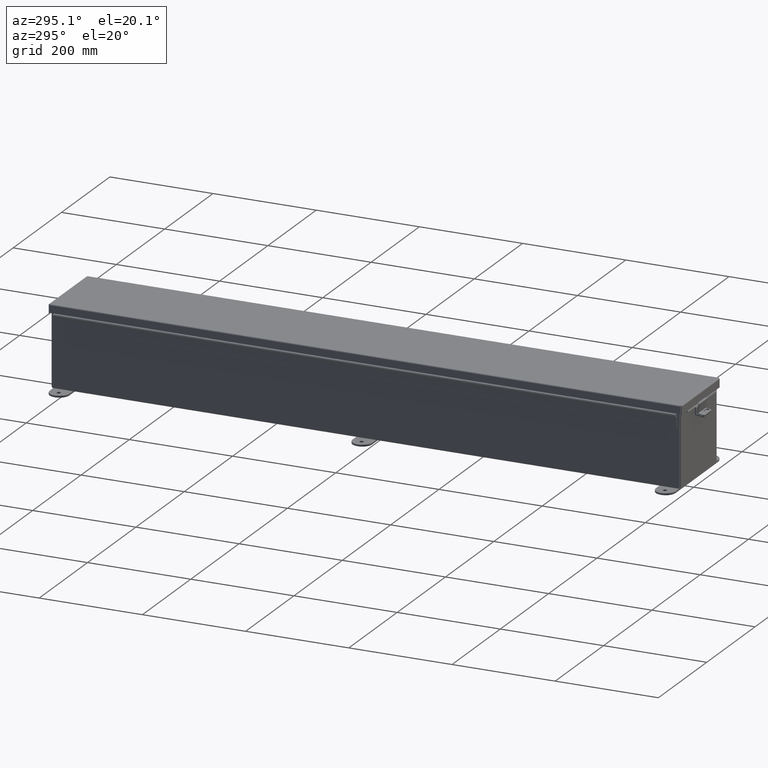
[diagram: clean part render]
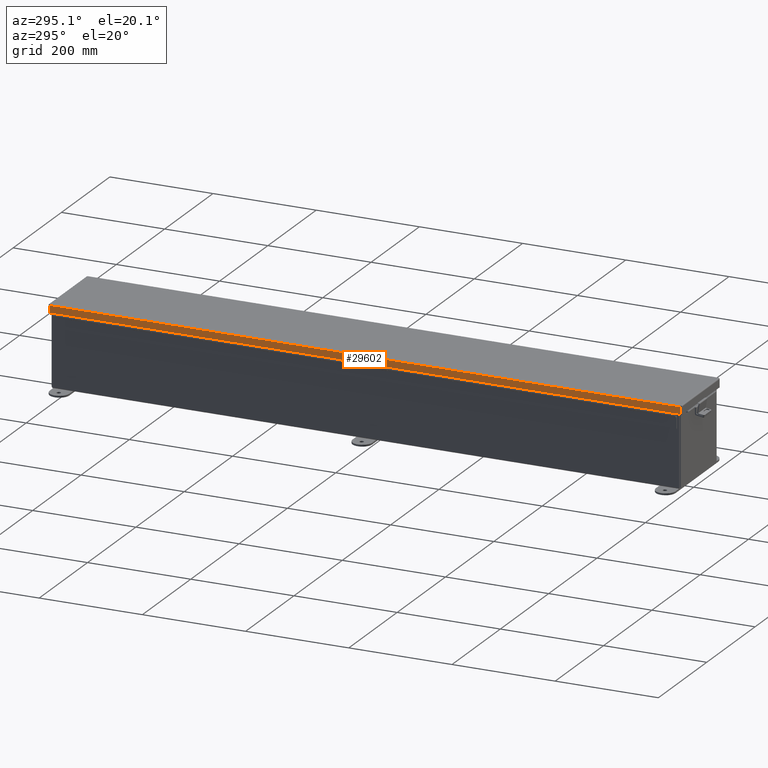
[diagram: same view with one face highlighted and labeled with its STEP entity id]
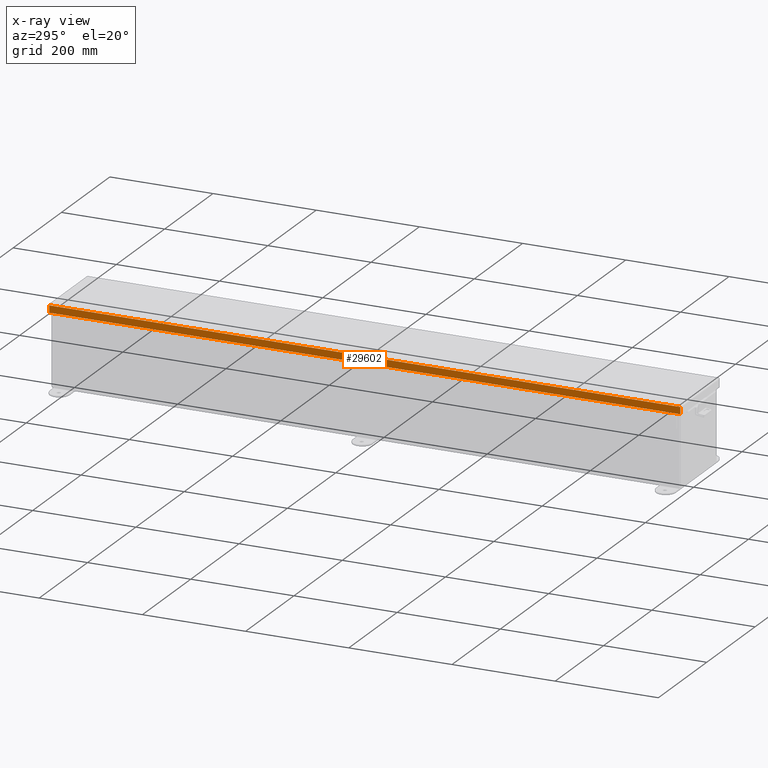
[diagram: x-ray of the same camera — body ghosted, the highlighted face saturated]
A machine part, auxiliary view. The second image highlights one B-rep face of the part: STEP entity #29602.
The next image is the same camera in x-ray: the body ghosted, the highlighted face saturated — about 0% of this face is hidden behind the body in this view.
In plain terms, the highlighted planar face has unit normal (1, -0, 0).
Its self-contained STEP definition (entity closure, byte-faithful):
#313 = LINE ( 'NONE', #27897, #23017 ) ;
#1070 = CARTESIAN_POINT ( 'NONE',  ( 3.156250000000011500, 24.07447893218813600, 0.01300000000000120000 ) ) ;
#3472 = VERTEX_POINT ( 'NONE', #13776 ) ;
#4089 = DIRECTION ( 'NONE',  ( -4.418124373691463200E-030, -1.000000000000000000, -2.261814638997488700E-017 ) ) ;
#6180 = VECTOR ( 'NONE', #6481, 39.37007874015748100 ) ;
#6357 = CARTESIAN_POINT ( 'NONE',  ( 3.156250000000011500, 24.07447893218813600, -1.202013117212275700E-014 ) ) ;
#6481 = DIRECTION ( 'NONE',  ( 3.971430846686186800E-015, -1.479114197289391000E-030, 1.000000000000000000 ) ) ;
#7937 = LINE ( 'NONE', #6357, #6180 ) ;
#8965 = VECTOR ( 'NONE', #4089, 39.37007874015748100 ) ;
#9055 = DIRECTION ( 'NONE',  ( -1.000000000000000000, -3.804630158025623000E-030, 3.971430846686186800E-015 ) ) ;
#12852 = CARTESIAN_POINT ( 'NONE',  ( 3.156250000000011500, -24.07447893218813600, 0.01300000000000010700 ) ) ;
#12939 = VECTOR ( 'NONE', #15217, 39.37007874015748100 ) ;
#13254 = FACE_OUTER_BOUND ( 'NONE', #15766, .T. ) ;
#13403 = VERTEX_POINT ( 'NONE', #1070 ) ;
#13776 = CARTESIAN_POINT ( 'NONE',  ( 3.156250000000013800, -24.07447893218813200, 0.5502999999999999000 ) ) ;
#14594 = CARTESIAN_POINT ( 'NONE',  ( 3.156250000000013800, 24.07447893218813600, 0.5503000000000096700 ) ) ;
#15217 = DIRECTION ( 'NONE',  ( -3.803320153772282700E-030, -1.000000000000000000, 8.874685183736382800E-031 ) ) ;
#15766 = EDGE_LOOP ( 'NONE', ( #35102, #25562, #24378, #21727 ) ) ;
#16427 = DIRECTION ( 'NONE',  ( 3.971430846686186800E-015, -1.479114197289391000E-030, 1.000000000000000000 ) ) ;
#17937 = EDGE_CURVE ( 'NONE', #13403, #26496, #30783, .T. ) ;
#20024 = CARTESIAN_POINT ( 'NONE',  ( 3.156250000000011500, -1.600692183787654200E-018, -1.202013117212275700E-014 ) ) ;
#21727 = ORIENTED_EDGE ( 'NONE', *, *, #33981, .F. ) ;
#21759 = EDGE_CURVE ( 'NONE', #25053, #3472, #35725, .T. ) ;
#23017 = VECTOR ( 'NONE', #16427, 39.37007874015748100 ) ;
#23629 = EDGE_CURVE ( 'NONE', #13403, #25053, #7937, .T. ) ;
#24378 = ORIENTED_EDGE ( 'NONE', *, *, #21759, .T. ) ;
#25053 = VERTEX_POINT ( 'NONE', #14594 ) ;
#25562 = ORIENTED_EDGE ( 'NONE', *, *, #23629, .T. ) ;
#26113 = PLANE ( 'NONE',  #36183 ) ;
#26496 = VERTEX_POINT ( 'NONE', #12852 ) ;
#27897 = CARTESIAN_POINT ( 'NONE',  ( 3.156250000000011500, -24.07447893218813200, 0.0000000000000000000 ) ) ;
#28958 = DIRECTION ( 'NONE',  ( 3.971430846686186800E-015, -1.479114197289391200E-030, 1.000000000000000000 ) ) ;
#29556 = CARTESIAN_POINT ( 'NONE',  ( 3.156250000000011500, -24.15624999999999600, 0.01300000000000010700 ) ) ;
#29602 = ADVANCED_FACE ( 'NONE', ( #13254 ), #26113, .F. ) ;
#30783 = LINE ( 'NONE', #29556, #8965 ) ;
#32295 = CARTESIAN_POINT ( 'NONE',  ( 3.156250000000013800, -1.600692183787654200E-018, 0.5503000000000010100 ) ) ;
#33981 = EDGE_CURVE ( 'NONE', #26496, #3472, #313, .T. ) ;
#35102 = ORIENTED_EDGE ( 'NONE', *, *, #17937, .F. ) ;
#35725 = LINE ( 'NONE', #32295, #12939 ) ;
#36183 = AXIS2_PLACEMENT_3D ( 'NONE', #20024, #9055, #28958 ) ;